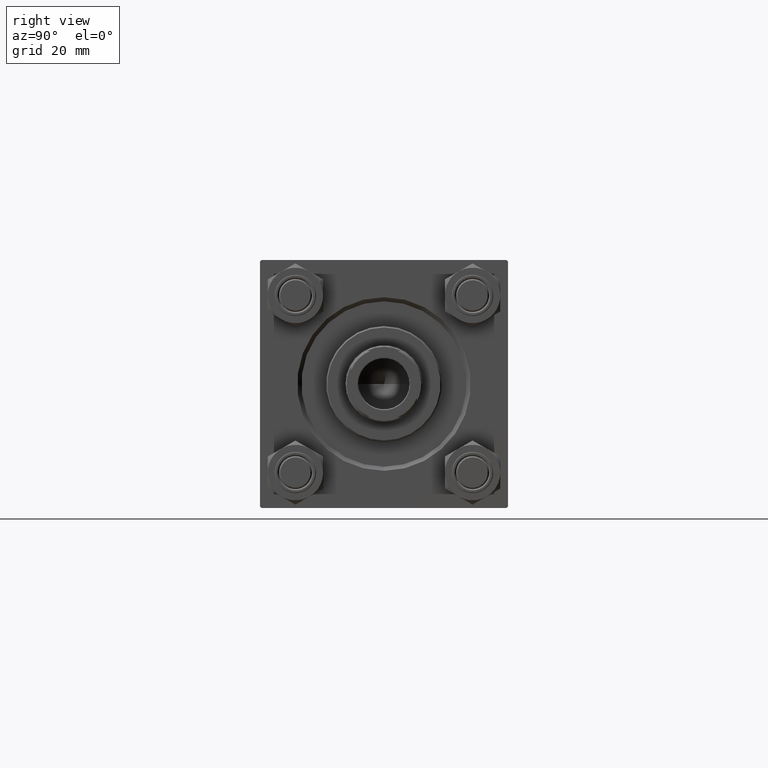
[diagram: clean part render]
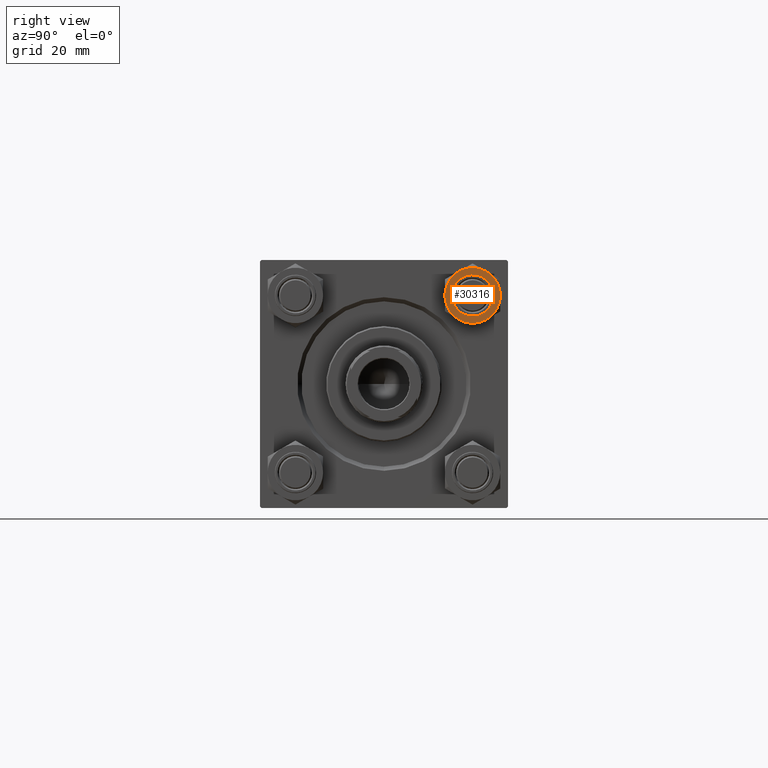
[diagram: same view with one face highlighted and labeled with its STEP entity id]
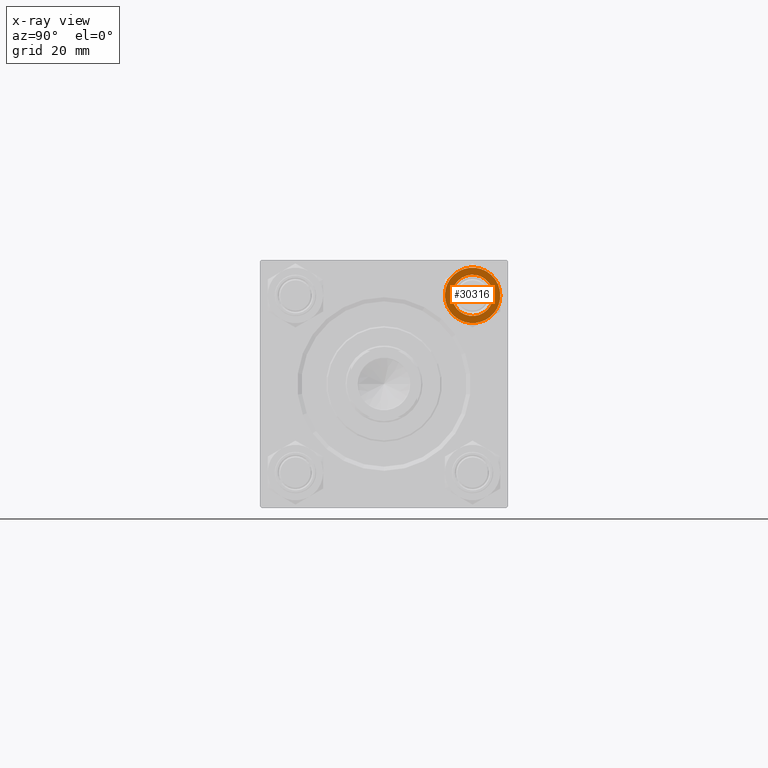
[diagram: x-ray of the same camera — body ghosted, the highlighted face saturated]
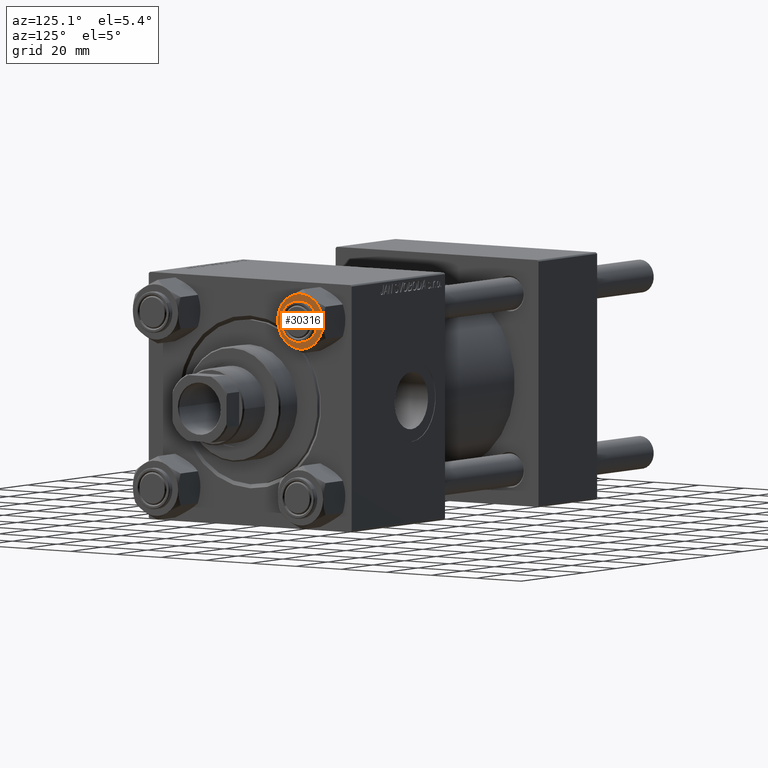
[diagram: same view with one face highlighted and labeled with its STEP entity id]
A machine part, right view. The second image highlights one B-rep face of the part: STEP entity #30316.
The next image is the same camera in x-ray: the body ghosted, the highlighted face saturated — about 0% of this face is hidden behind the body in this view.
A second angle (auxiliary view) of the same face is appended — the face is thin or edge-on in the first view.
In plain terms, the highlighted planar face has unit normal (-1, 0, 0).
Its self-contained STEP definition (entity closure, byte-faithful):
#216 = DIRECTION ( 'NONE',  ( 0.000000000000000000, -0.000000000000000000, -1.000000000000000000 ) ) ;
#1870 = AXIS2_PLACEMENT_3D ( 'NONE', #17925, #22444, #25739 ) ;
#2269 = AXIS2_PLACEMENT_3D ( 'NONE', #23450, #18688, #45411 ) ;
#2453 = CARTESIAN_POINT ( 'NONE',  ( 7.500000000000000000, 9.184850993605147944E-16, 0.000000000000000000 ) ) ;
#3189 = ORIENTED_EDGE ( 'NONE', *, *, #16595, .T. ) ;
#3785 = ORIENTED_EDGE ( 'NONE', *, *, #4045, .F. ) ;
#4045 = EDGE_CURVE ( 'NONE', #30341, #34230, #45391, .T. ) ;
#4267 = CIRCLE ( 'NONE', #1870, 10.06321519197517134 ) ;
#4683 = CIRCLE ( 'NONE', #43252, 10.06321519197517134 ) ;
#6368 = DIRECTION ( 'NONE',  ( 0.000000000000000000, -0.000000000000000000, -1.000000000000000000 ) ) ;
#6504 = ORIENTED_EDGE ( 'NONE', *, *, #13296, .F. ) ;
#6840 = PLANE ( 'NONE',  #30156 ) ;
#6961 = ORIENTED_EDGE ( 'NONE', *, *, #30220, .F. ) ;
#7766 = CARTESIAN_POINT ( 'NONE',  ( 0.000000000000000000, 0.000000000000000000, 0.000000000000000000 ) ) ;
#8378 = CIRCLE ( 'NONE', #34181, 10.06321519197517134 ) ;
#8944 = EDGE_LOOP ( 'NONE', ( #20050, #17651 ) ) ;
#9709 = CARTESIAN_POINT ( 'NONE',  ( 0.000000000000000000, 0.000000000000000000, 0.000000000000000000 ) ) ;
#9742 = DIRECTION ( 'NONE',  ( -1.000000000000000000, 0.000000000000000000, 0.000000000000000000 ) ) ;
#9971 = CIRCLE ( 'NONE', #36539, 7.500000000000000000 ) ;
#10700 = CARTESIAN_POINT ( 'NONE',  ( 0.000000000000000000, 0.000000000000000000, 0.000000000000000000 ) ) ;
#10782 = EDGE_CURVE ( 'NONE', #12191, #35040, #49633, .T. ) ;
#12191 = VERTEX_POINT ( 'NONE', #31603 ) ;
#12299 = CARTESIAN_POINT ( 'NONE',  ( -6.009258394948640858E-15, 10.06321519197518022, 0.000000000000000000 ) ) ;
#13296 = EDGE_CURVE ( 'NONE', #35040, #34606, #4683, .T. ) ;
#13443 = DIRECTION ( 'NONE',  ( 0.000000000000000000, 0.000000000000000000, 1.000000000000000000 ) ) ;
#13562 = DIRECTION ( 'NONE',  ( 0.000000000000000000, -0.000000000000000000, -1.000000000000000000 ) ) ;
#13893 = DIRECTION ( 'NONE',  ( -1.000000000000000000, 0.000000000000000000, 0.000000000000000000 ) ) ;
#14628 = DIRECTION ( 'NONE',  ( -1.000000000000000000, 0.000000000000000000, -0.000000000000000000 ) ) ;
#16595 = EDGE_CURVE ( 'NONE', #18594, #48275, #46495, .T. ) ;
#17651 = ORIENTED_EDGE ( 'NONE', *, *, #32545, .F. ) ;
#17925 = CARTESIAN_POINT ( 'NONE',  ( 0.000000000000000000, 0.000000000000000000, 0.000000000000000000 ) ) ;
#17963 = AXIS2_PLACEMENT_3D ( 'NONE', #7766, #216, #38270 ) ;
#18594 = VERTEX_POINT ( 'NONE', #40256 ) ;
#18688 = DIRECTION ( 'NONE',  ( 0.000000000000000000, 0.000000000000000000, 1.000000000000000000 ) ) ;
#19994 = EDGE_LOOP ( 'NONE', ( #48845, #3785, #20509, #6504, #20625, #6961, #3189 ) ) ;
#20050 = ORIENTED_EDGE ( 'NONE', *, *, #47087, .F. ) ;
#20509 = ORIENTED_EDGE ( 'NONE', *, *, #32041, .F. ) ;
#20625 = ORIENTED_EDGE ( 'NONE', *, *, #10782, .F. ) ;
#22192 = CARTESIAN_POINT ( 'NONE',  ( 0.000000000000000000, 0.000000000000000000, 0.000000000000000000 ) ) ;
#22444 = DIRECTION ( 'NONE',  ( 0.000000000000000000, -0.000000000000000000, -1.000000000000000000 ) ) ;
#22586 = CARTESIAN_POINT ( 'NONE',  ( 8.714999999999999858, -5.031607595987580339, 0.000000000000000000 ) ) ;
#23450 = CARTESIAN_POINT ( 'NONE',  ( 0.000000000000000000, 0.000000000000000000, 0.000000000000000000 ) ) ;
#24806 = CARTESIAN_POINT ( 'NONE',  ( 0.000000000000000000, 0.000000000000000000, 0.000000000000000000 ) ) ;
#25739 = DIRECTION ( 'NONE',  ( -1.000000000000000000, 0.000000000000000000, 0.000000000000000000 ) ) ;
#28430 = DIRECTION ( 'NONE',  ( 0.000000000000000000, -0.000000000000000000, -1.000000000000000000 ) ) ;
#28747 = AXIS2_PLACEMENT_3D ( 'NONE', #36246, #28430, #9742 ) ;
#28788 = AXIS2_PLACEMENT_3D ( 'NONE', #10700, #48776, #45001 ) ;
#28853 = DIRECTION ( 'NONE',  ( 1.000000000000000000, 0.000000000000000000, 0.000000000000000000 ) ) ;
#30156 = AXIS2_PLACEMENT_3D ( 'NONE', #22192, #37581, #14628 ) ;
#30220 = EDGE_CURVE ( 'NONE', #18594, #12191, #4267, .T. ) ;
#30316 = ADVANCED_FACE ( 'NONE', ( #33816, #41353 ), #6840, .F. ) ;
#30341 = VERTEX_POINT ( 'NONE', #41844 ) ;
#31603 = CARTESIAN_POINT ( 'NONE',  ( 10.06321519197517134, 0.000000000000000000, 0.000000000000000000 ) ) ;
#32041 = EDGE_CURVE ( 'NONE', #34606, #30341, #48587, .T. ) ;
#32545 = EDGE_CURVE ( 'NONE', #44561, #47121, #9971, .T. ) ;
#32753 = CARTESIAN_POINT ( 'NONE',  ( 0.000000000000000000, 0.000000000000000000, 0.000000000000000000 ) ) ;
#33816 = FACE_BOUND ( 'NONE', #8944, .T. ) ;
#34181 = AXIS2_PLACEMENT_3D ( 'NONE', #37347, #6368, #13893 ) ;
#34230 = VERTEX_POINT ( 'NONE', #46433 ) ;
#34379 = EDGE_CURVE ( 'NONE', #34230, #48275, #8378, .T. ) ;
#34606 = VERTEX_POINT ( 'NONE', #40070 ) ;
#35040 = VERTEX_POINT ( 'NONE', #22586 ) ;
#35696 = DIRECTION ( 'NONE',  ( 0.000000000000000000, -0.000000000000000000, -1.000000000000000000 ) ) ;
#36062 = CIRCLE ( 'NONE', #2269, 7.500000000000000000 ) ;
#36246 = CARTESIAN_POINT ( 'NONE',  ( 0.000000000000000000, 0.000000000000000000, 0.000000000000000000 ) ) ;
#36539 = AXIS2_PLACEMENT_3D ( 'NONE', #24806, #13443, #28853 ) ;
#37347 = CARTESIAN_POINT ( 'NONE',  ( 0.000000000000000000, 0.000000000000000000, 0.000000000000000000 ) ) ;
#37581 = DIRECTION ( 'NONE',  ( 0.000000000000000000, 0.000000000000000000, -1.000000000000000000 ) ) ;
#38270 = DIRECTION ( 'NONE',  ( -1.000000000000000000, 0.000000000000000000, 0.000000000000000000 ) ) ;
#40070 = CARTESIAN_POINT ( 'NONE',  ( 6.009258394948636914E-15, -10.06321519197517134, 0.000000000000000000 ) ) ;
#40256 = CARTESIAN_POINT ( 'NONE',  ( 8.714999999999994529, 5.031607595987588333, 0.000000000000000000 ) ) ;
#41353 = FACE_OUTER_BOUND ( 'NONE', #19994, .T. ) ;
#41844 = CARTESIAN_POINT ( 'NONE',  ( -8.714999999999992752, -5.031607595987588333, 0.000000000000000000 ) ) ;
#43252 = AXIS2_PLACEMENT_3D ( 'NONE', #32753, #13562, #45068 ) ;
#43737 = DIRECTION ( 'NONE',  ( -1.000000000000000000, 0.000000000000000000, 0.000000000000000000 ) ) ;
#44561 = VERTEX_POINT ( 'NONE', #2453 ) ;
#45001 = DIRECTION ( 'NONE',  ( 1.000000000000000000, 0.000000000000000000, 0.000000000000000000 ) ) ;
#45068 = DIRECTION ( 'NONE',  ( -1.000000000000000000, 0.000000000000000000, 0.000000000000000000 ) ) ;
#45391 = CIRCLE ( 'NONE', #47811, 10.06321519197517134 ) ;
#45411 = DIRECTION ( 'NONE',  ( 1.000000000000000000, 0.000000000000000000, 0.000000000000000000 ) ) ;
#46139 = CARTESIAN_POINT ( 'NONE',  ( -7.500000000000000000, 0.000000000000000000, 0.000000000000000000 ) ) ;
#46433 = CARTESIAN_POINT ( 'NONE',  ( -8.714999999999996305, 5.031607595987583004, 0.000000000000000000 ) ) ;
#46495 = CIRCLE ( 'NONE', #28788, 10.06321519197517134 ) ;
#47087 = EDGE_CURVE ( 'NONE', #47121, #44561, #36062, .T. ) ;
#47121 = VERTEX_POINT ( 'NONE', #46139 ) ;
#47811 = AXIS2_PLACEMENT_3D ( 'NONE', #9709, #35696, #43737 ) ;
#48275 = VERTEX_POINT ( 'NONE', #12299 ) ;
#48587 = CIRCLE ( 'NONE', #17963, 10.06321519197517134 ) ;
#48776 = DIRECTION ( 'NONE',  ( 0.000000000000000000, 0.000000000000000000, 1.000000000000000000 ) ) ;
#48845 = ORIENTED_EDGE ( 'NONE', *, *, #34379, .F. ) ;
#49633 = CIRCLE ( 'NONE', #28747, 10.06321519197517134 ) ;